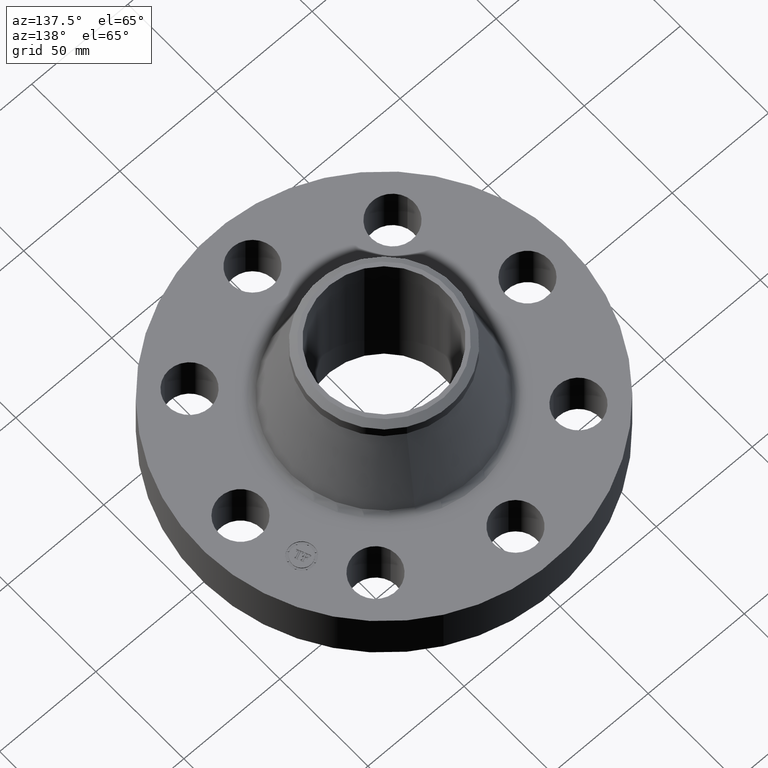
[diagram: clean part render]
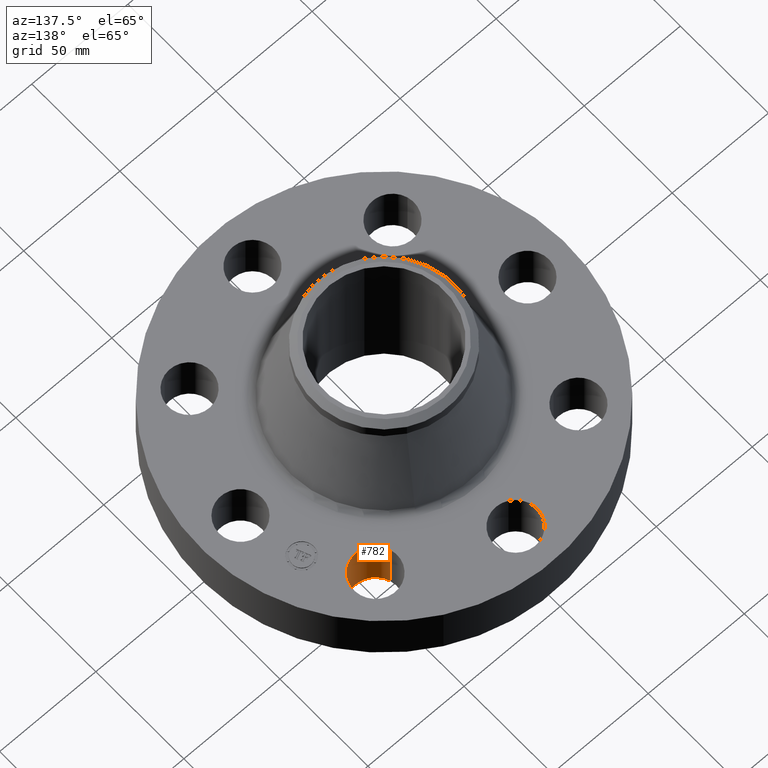
[diagram: same view with one face highlighted and labeled with its STEP entity id]
A machine part, auxiliary view. The second image highlights one B-rep face of the part: STEP entity #782.
In plain terms, the highlighted cylindrical surface (edge-blend (fillet) strip) has radius 11.176 mm, axis along (0, 0, -1).
Its self-contained STEP definition (entity closure, byte-faithful):
#560=AXIS2_PLACEMENT_3D('Circle Axis2P3D',#558,#559,$) ;
#743=AXIS2_PLACEMENT_3D('Cylinder Axis2P3D',#740,#741,#742) ;
#773=AXIS2_PLACEMENT_3D('Circle Axis2P3D',#771,#772,$) ;
#553=CARTESIAN_POINT('Vertex',(1.6566920995,1.95501654299,0.)) ;
#555=CARTESIAN_POINT('Vertex',(2.50109577389,2.2027713304,0.)) ;
#558=CARTESIAN_POINT('Axis2P3D Location',(2.0788939367,2.0788939367,0.)) ;
#740=CARTESIAN_POINT('Axis2P3D Location',(2.0788939367,2.0788939367,1.11606299213)) ;
#745=CARTESIAN_POINT('Line Origine',(1.6566920995,1.95501654299,0.560000000002)) ;
#749=CARTESIAN_POINT('Vertex',(1.6566920995,1.95501654299,1.12)) ;
#752=CARTESIAN_POINT('Line Origine',(2.50109577389,2.2027713304,0.560000000002)) ;
#756=CARTESIAN_POINT('Vertex',(2.50109577389,2.2027713304,1.12)) ;
#771=CARTESIAN_POINT('Axis2P3D Location',(2.0788939367,2.0788939367,1.12)) ;
#559=DIRECTION('Axis2P3D Direction',(0.,0.,-0.0393700787402)) ;
#741=DIRECTION('Axis2P3D Direction',(0.,0.,-0.0393700787402)) ;
#742=DIRECTION('Axis2P3D XDirection',(0.0377775444876,0.0110842335096,0.)) ;
#746=DIRECTION('Vector Direction',(0.,0.,-0.0393700787402)) ;
#753=DIRECTION('Vector Direction',(0.,0.,-0.0393700787402)) ;
#772=DIRECTION('Axis2P3D Direction',(0.,0.,-0.0393700787402)) ;
#747=VECTOR('Line Direction',#746,0.0393700787402) ;
#754=VECTOR('Line Direction',#753,0.0393700787402) ;
#777=ORIENTED_EDGE('',*,*,#758,.F.) ;
#778=ORIENTED_EDGE('',*,*,#562,.T.) ;
#779=ORIENTED_EDGE('',*,*,#751,.T.) ;
#780=ORIENTED_EDGE('',*,*,#775,.F.) ;
#782=ADVANCED_FACE('PartBody',(#781),#744,.F.) ;
#561=CIRCLE('generated circle',#560,0.440000000002) ;
#774=CIRCLE('generated circle',#773,0.440000000002) ;
#744=CYLINDRICAL_SURFACE('generated cylinder',#743,0.440000000002) ;
#562=EDGE_CURVE('',#556,#554,#561,.T.) ;
#751=EDGE_CURVE('',#554,#750,#748,.F.) ;
#758=EDGE_CURVE('',#556,#757,#755,.F.) ;
#775=EDGE_CURVE('',#757,#750,#774,.T.) ;
#776=EDGE_LOOP('',(#777,#778,#779,#780)) ;
#781=FACE_OUTER_BOUND('',#776,.T.) ;
#748=LINE('Line',#745,#747) ;
#755=LINE('Line',#752,#754) ;
#554=VERTEX_POINT('',#553) ;
#556=VERTEX_POINT('',#555) ;
#750=VERTEX_POINT('',#749) ;
#757=VERTEX_POINT('',#756) ;